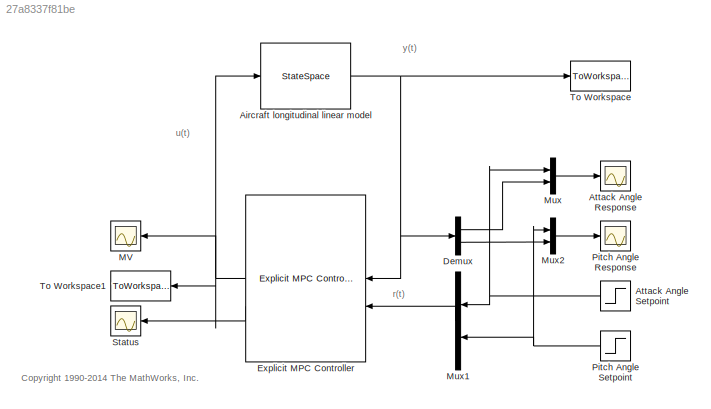
MODEL slx_27a8337f81be
KIND model
CONFIG AbsTol = auto
CONFIG EnableMultiTasking = off
CONFIG FixedStep = auto
CONFIG MaxStep = auto
CONFIG MinStep = auto
CONFIG RelTol = 1e-3
CONFIG SampleTimeConstraint = Unconstrained
CONFIG SolverName = ode45
CONFIG StartTime = 0.0
CONFIG StopTime = 5
BLOCK [StateSpace] Aircraft longitudinal linear model
  A = A
  B = B
  C = C
  D = D
  InitialCondition = x0
BLOCK [Scope] Attack Angle Response
  Floating = off
  NumInputPorts = 1
  ScopeSpecificationString = Simulink.scopes.TimeScopeBlockCfg('CurrentConfiguration', extmgr.ConfigurationSet(extmgr.Configuration('Core','General UI',true,'FigureColor',[0.156862745098039 0.156862745098039 0.156862745098039]),extmgr.Configuration('Core','Source UI',true),extmgr.Configuration('Sources','WiredSimulink',true,'DataLoggingSaveFormat','Structure','DataLoggingDecimation','1','DataLoggingDecimateData',true),extmgr....<+2801ch>
BLOCK [Step] Attack Angle Setpoint
  After = 0.1
  SampleTime = 0
BLOCK [Demux] Demux
  Outputs = 2
BLOCK [Reference] Explicit MPC Controller  REF=mpclib/Explicit MPC Controller  (lib defined in mdl_ae329e0e0455)
  SCDEnableBlockLinearizationSpecification = on
  SourceBlock = mpclib/Explicit MPC Controller
  SourceType = Explicit MPC
BLOCK [Scope] MV
  Floating = off
  NumInputPorts = 1
  ScopeSpecificationString = Simulink.scopes.TimeScopeBlockCfg('CurrentConfiguration', extmgr.ConfigurationSet(extmgr.Configuration('Core','General UI',true,'FigureColor',[0.156862745098039 0.156862745098039 0.156862745098039]),extmgr.Configuration('Core','Source UI',true),extmgr.Configuration('Sources','WiredSimulink',true,'DataLoggingSaveFormat','Structure','DataLoggingLimitDataPoints',true,'DataLoggingDecimation','1','Data...<+2844ch>
BLOCK [Mux] Mux
  DisplayOption = bar
  Inputs = 2
BLOCK [Mux] Mux1
  DisplayOption = bar
  Inputs = 2
BLOCK [Mux] Mux2
  DisplayOption = bar
  Inputs = 2
BLOCK [Scope] Pitch Angle Response
  Floating = off
  NumInputPorts = 1
  ScopeSpecificationString = Simulink.scopes.TimeScopeBlockCfg('CurrentConfiguration', extmgr.ConfigurationSet(extmgr.Configuration('Core','General UI',true,'FigureColor',[0.156862745098039 0.156862745098039 0.156862745098039]),extmgr.Configuration('Core','Source UI',true),extmgr.Configuration('Sources','WiredSimulink',true,'DataLoggingVariableName','ScopeData1','DataLoggingSaveFormat','Structure','DataLoggingDecimation','1',...<+2835ch>
BLOCK [Step] Pitch Angle Setpoint
  After = 2
  SampleTime = 0
  Time = 2
BLOCK [Scope] Status
  Floating = off
  NumInputPorts = 1
  ScopeSpecificationString = Simulink.scopes.TimeScopeBlockCfg('CurrentConfiguration', extmgr.ConfigurationSet(extmgr.Configuration('Core','General UI',true,'FigureColor',[0.156862745098039 0.156862745098039 0.156862745098039]),extmgr.Configuration('Core','Source UI',true),extmgr.Configuration('Sources','WiredSimulink',true,'DataLoggingVariableName','ScopeData1','DataLoggingSaveFormat','Structure','DataLoggingLimitDataPoints'...<+2783ch>
BLOCK [ToWorkspace] To Workspace
  MaxDataPoints = inf
  SampleTime = -1
  VariableName = y
BLOCK [ToWorkspace] To Workspace1
  MaxDataPoints = inf
  SampleTime = -1
  VariableName = u
ANNOTATION (root): <copyright redacted>
ANNOTATION (root): r(t)
ANNOTATION (root): u(t)
ANNOTATION (root): y(t)
NET Aircraft longitudinal linear model:1 -> Demux:1, Explicit MPC Controller:1, To Workspace:1
NET Attack Angle Setpoint:1 -> Mux1:1, Mux:1
LINE Demux:1 -> Mux:2
LINE Demux:2 -> Mux2:2
NET Explicit MPC Controller:1 -> Aircraft longitudinal linear model:1, MV:1, To Workspace1:1
LINE Explicit MPC Controller:2 -> Status:1
LINE Mux1:1 -> Explicit MPC Controller:2
LINE Mux2:1 -> Pitch Angle Response:1
LINE Mux:1 -> Attack Angle Response:1
NET Pitch Angle Setpoint:1 -> Mux1:2, Mux2:1
note: NET lines group one-source signal fan-out (src -> all destinations, sorted); 1:1 wires keep LINE
